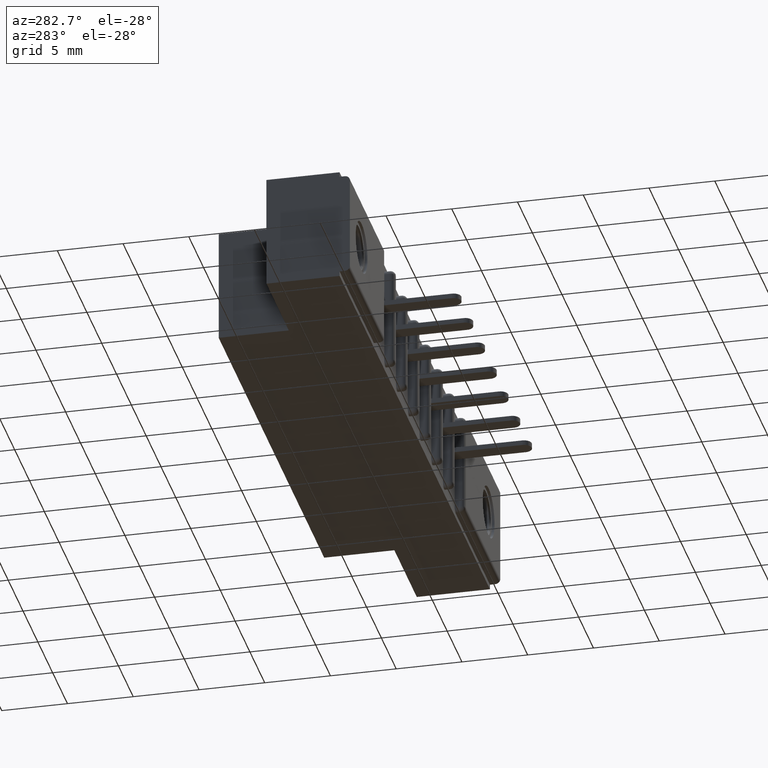
[diagram: clean part render]
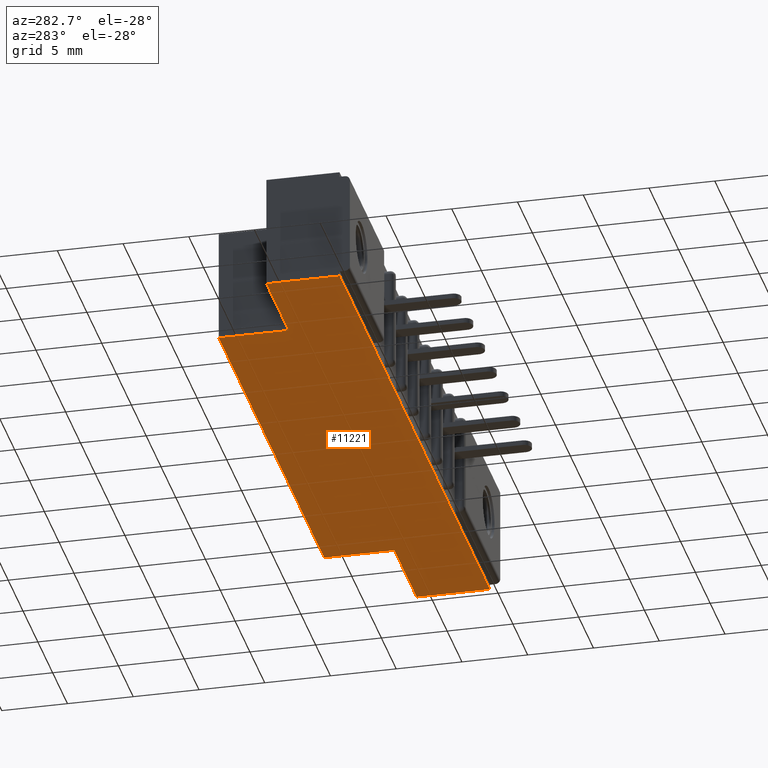
[diagram: same view with one face highlighted and labeled with its STEP entity id]
A machine part, auxiliary view. The second image highlights one B-rep face of the part: STEP entity #11221.
In plain terms, the highlighted planar face has unit normal (0, 0, 1).
Its self-contained STEP definition (entity closure, byte-faithful):
#227 = LINE ( 'NONE', #8251, #3874 ) ;
#254 = DIRECTION ( 'NONE',  ( -0.0000000000000000000, -1.000000000000000000, -0.0000000000000000000 ) ) ;
#1003 = ORIENTED_EDGE ( 'NONE', *, *, #8283, .F. ) ;
#1027 = CARTESIAN_POINT ( 'NONE',  ( 1.998000000000000000, 0.03100000000000000000, -0.3430000000000000300 ) ) ;
#1160 = VECTOR ( 'NONE', #3747, 39.37007874015748100 ) ;
#1536 = LINE ( 'NONE', #6601, #1160 ) ;
#1610 = DIRECTION ( 'NONE',  ( -1.000000000000000000, 0.0000000000000000000, 1.145909393315547100E-015 ) ) ;
#1721 = ORIENTED_EDGE ( 'NONE', *, *, #8502, .T. ) ;
#1932 = ORIENTED_EDGE ( 'NONE', *, *, #3497, .F. ) ;
#2259 = VERTEX_POINT ( 'NONE', #11484 ) ;
#2565 = VECTOR ( 'NONE', #254, 39.37007874015748100 ) ;
#2991 = CARTESIAN_POINT ( 'NONE',  ( 0.0000000000000000000, 0.4600000000000000200, -0.3430000000000000300 ) ) ;
#3272 = DIRECTION ( 'NONE',  ( -1.000000000000000000, -0.0000000000000000000, -0.0000000000000000000 ) ) ;
#3300 = CARTESIAN_POINT ( 'NONE',  ( 0.0000000000000000000, 0.4600000000000000200, -0.3430000000000000300 ) ) ;
#3497 = EDGE_CURVE ( 'NONE', #11518, #4011, #7362, .T. ) ;
#3697 = LINE ( 'NONE', #8496, #10975 ) ;
#3747 = DIRECTION ( 'NONE',  ( -0.0000000000000000000, 1.000000000000000000, -0.0000000000000000000 ) ) ;
#3874 = VECTOR ( 'NONE', #4465, 39.37007874015748100 ) ;
#3997 = PLANE ( 'NONE',  #8617 ) ;
#4008 = LINE ( 'NONE', #11030, #6250 ) ;
#4009 = ORIENTED_EDGE ( 'NONE', *, *, #8325, .T. ) ;
#4011 = VERTEX_POINT ( 'NONE', #11958 ) ;
#4465 = DIRECTION ( 'NONE',  ( -0.0000000000000000000, -1.000000000000000000, -0.0000000000000000000 ) ) ;
#4492 = CARTESIAN_POINT ( 'NONE',  ( 0.0000000000000000000, 0.03100000000000000000, -0.3430000000000000300 ) ) ;
#4818 = VECTOR ( 'NONE', #3272, 39.37007874015748100 ) ;
#4954 = DIRECTION ( 'NONE',  ( 1.000000000000000000, 0.0000000000000000000, -0.0000000000000000000 ) ) ;
#5642 = VECTOR ( 'NONE', #5741, 39.37007874015748100 ) ;
#5705 = DIRECTION ( 'NONE',  ( -1.000000000000000000, -0.0000000000000000000, -0.0000000000000000000 ) ) ;
#5741 = DIRECTION ( 'NONE',  ( -0.0000000000000000000, 1.000000000000000000, -0.0000000000000000000 ) ) ;
#5873 = DIRECTION ( 'NONE',  ( 0.0000000000000000000, 0.0000000000000000000, 1.000000000000000000 ) ) ;
#6071 = ORIENTED_EDGE ( 'NONE', *, *, #8485, .F. ) ;
#6250 = VECTOR ( 'NONE', #9391, 39.37007874015748100 ) ;
#6552 = LINE ( 'NONE', #10267, #9019 ) ;
#6601 = CARTESIAN_POINT ( 'NONE',  ( 1.700000000000000200, 0.2500000000000000600, -0.3429999999999996400 ) ) ;
#6798 = VERTEX_POINT ( 'NONE', #1027 ) ;
#6983 = EDGE_LOOP ( 'NONE', ( #1932, #10943, #10351, #4009, #8714, #1003, #6071, #1721 ) ) ;
#7362 = LINE ( 'NONE', #3300, #4818 ) ;
#8135 = LINE ( 'NONE', #11098, #5642 ) ;
#8241 = FACE_OUTER_BOUND ( 'NONE', #6983, .T. ) ;
#8251 = CARTESIAN_POINT ( 'NONE',  ( 0.0000000000000000000, 0.4600000000000000200, -0.3430000000000000300 ) ) ;
#8283 = EDGE_CURVE ( 'NONE', #9122, #9045, #227, .T. ) ;
#8325 = EDGE_CURVE ( 'NONE', #10130, #6798, #10133, .T. ) ;
#8436 = EDGE_CURVE ( 'NONE', #9432, #11518, #1536, .T. ) ;
#8439 = EDGE_CURVE ( 'NONE', #10130, #9432, #6552, .T. ) ;
#8457 = EDGE_CURVE ( 'NONE', #6798, #9045, #4008, .T. ) ;
#8485 = EDGE_CURVE ( 'NONE', #2259, #9122, #3697, .T. ) ;
#8496 = CARTESIAN_POINT ( 'NONE',  ( 0.0000000000000000000, 0.2500000000000000600, -0.3430000000000000300 ) ) ;
#8502 = EDGE_CURVE ( 'NONE', #2259, #4011, #8135, .T. ) ;
#8617 = AXIS2_PLACEMENT_3D ( 'NONE', #2991, #5873, #4954 ) ;
#8714 = ORIENTED_EDGE ( 'NONE', *, *, #8457, .T. ) ;
#9019 = VECTOR ( 'NONE', #1610, 39.37007874015748100 ) ;
#9045 = VERTEX_POINT ( 'NONE', #4492 ) ;
#9122 = VERTEX_POINT ( 'NONE', #9375 ) ;
#9375 = CARTESIAN_POINT ( 'NONE',  ( 0.0000000000000000000, 0.2500000000000000600, -0.3430000000000000300 ) ) ;
#9391 = DIRECTION ( 'NONE',  ( -1.000000000000000000, -0.0000000000000000000, -0.0000000000000000000 ) ) ;
#9432 = VERTEX_POINT ( 'NONE', #11416 ) ;
#10130 = VERTEX_POINT ( 'NONE', #10407 ) ;
#10133 = LINE ( 'NONE', #11681, #2565 ) ;
#10267 = CARTESIAN_POINT ( 'NONE',  ( 1.998000000000000000, 0.2500000000000000600, -0.3430000000000000300 ) ) ;
#10351 = ORIENTED_EDGE ( 'NONE', *, *, #8439, .F. ) ;
#10407 = CARTESIAN_POINT ( 'NONE',  ( 1.998000000000000000, 0.2500000000000000600, -0.3430000000000000300 ) ) ;
#10909 = CARTESIAN_POINT ( 'NONE',  ( 1.700000000000000200, 0.4600000000000000200, -0.3429999999999996400 ) ) ;
#10943 = ORIENTED_EDGE ( 'NONE', *, *, #8436, .F. ) ;
#10975 = VECTOR ( 'NONE', #5705, 39.37007874015748100 ) ;
#11030 = CARTESIAN_POINT ( 'NONE',  ( 1.998000000000000000, 0.03100000000000000000, -0.3430000000000000300 ) ) ;
#11098 = CARTESIAN_POINT ( 'NONE',  ( 0.2979999999999998200, 0.2500000000000000600, -0.3430000000000000300 ) ) ;
#11221 = ADVANCED_FACE ( 'NONE', ( #8241 ), #3997, .F. ) ;
#11416 = CARTESIAN_POINT ( 'NONE',  ( 1.700000000000000200, 0.2500000000000000600, -0.3429999999999996400 ) ) ;
#11484 = CARTESIAN_POINT ( 'NONE',  ( 0.2979999999999999900, 0.2500000000000000600, -0.3430000000000000300 ) ) ;
#11518 = VERTEX_POINT ( 'NONE', #10909 ) ;
#11681 = CARTESIAN_POINT ( 'NONE',  ( 1.998000000000000000, 0.4600000000000000200, -0.3430000000000000300 ) ) ;
#11958 = CARTESIAN_POINT ( 'NONE',  ( 0.2979999999999998200, 0.4600000000000000200, -0.3430000000000000300 ) ) ;